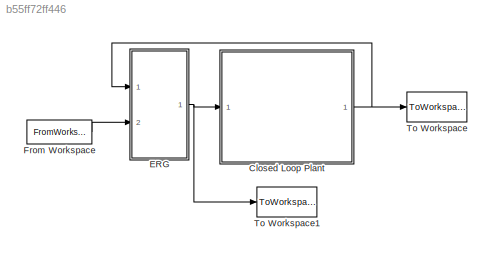
MODEL slx_b55ff72ff446
KIND model
CONFIG AbsTol = 1e-9
CONFIG EnableMultiTasking = off
CONFIG FixedStep = auto
CONFIG MaxStep = auto
CONFIG MinStep = auto
CONFIG RelTol = 1e-7
CONFIG SampleTimeConstraint = Unconstrained
CONFIG Solver = ode23s
CONFIG SolverName = ode23s
CONFIG StartTime = 0.0
CONFIG StopTime = 8
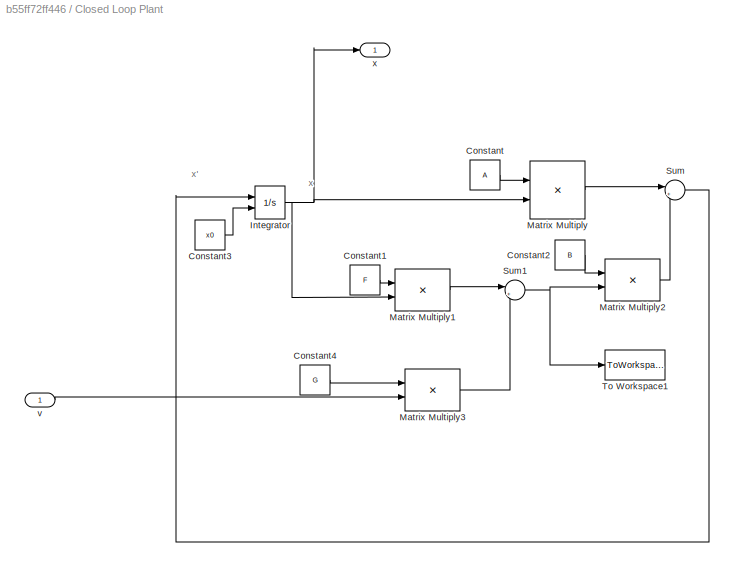
BLOCK [SubSystem] Closed Loop Plant
  Ports = [1, 1]
  RequestExecContextInheritance = off
BLOCK [Constant] Closed Loop Plant/Constant
  Value = A
BLOCK [Constant] Closed Loop Plant/Constant1
  Value = F
  VectorParams1D = off
BLOCK [Constant] Closed Loop Plant/Constant2
  Value = B
  VectorParams1D = off
BLOCK [Constant] Closed Loop Plant/Constant3
  Value = x0
  VectorParams1D = off
BLOCK [Constant] Closed Loop Plant/Constant4
  Value = G
  VectorParams1D = off
BLOCK [Integrator] Closed Loop Plant/Integrator
  InitialCondition = x0
  InitialConditionSource = external
  Ports = [2, 1]
BLOCK [Product] Closed Loop Plant/Matrix Multiply
  InputSameDT = off
  Multiplication = Matrix(*)
  OutDataTypeStr = Inherit: Inherit via internal rule
  Ports = [2, 1]
  RndMeth = Floor
  SaturateOnIntegerOverflow = off
BLOCK [Product] Closed Loop Plant/Matrix Multiply1
  InputSameDT = off
  Multiplication = Matrix(*)
  OutDataTypeStr = Inherit: Inherit via internal rule
  Ports = [2, 1]
  RndMeth = Floor
  SaturateOnIntegerOverflow = off
BLOCK [Product] Closed Loop Plant/Matrix Multiply2
  InputSameDT = off
  Multiplication = Matrix(*)
  OutDataTypeStr = Inherit: Inherit via internal rule
  Ports = [2, 1]
  RndMeth = Floor
  SaturateOnIntegerOverflow = off
BLOCK [Product] Closed Loop Plant/Matrix Multiply3
  InputSameDT = off
  Multiplication = Matrix(*)
  OutDataTypeStr = Inherit: Inherit via internal rule
  Ports = [2, 1]
  RndMeth = Floor
  SaturateOnIntegerOverflow = off
BLOCK [Sum] Closed Loop Plant/Sum
  IconShape = round
  InputSameDT = off
  Inputs = |++
  OutDataTypeStr = Inherit: Inherit via internal rule
  Ports = [2, 1]
  SaturateOnIntegerOverflow = off
BLOCK [Sum] Closed Loop Plant/Sum1
  IconShape = round
  InputSameDT = off
  Inputs = |++
  OutDataTypeStr = Inherit: Inherit via internal rule
  Ports = [2, 1]
  SaturateOnIntegerOverflow = off
BLOCK [ToWorkspace] Closed Loop Plant/To Workspace1
  FixptAsFi = on
  MaxDataPoints = inf
  Ports = [1]
  SampleTime = -1
  Save2DSignal = 2-D array (concatenate along first dimension)
  SaveFormat = Timeseries
  VariableName = uh
BLOCK [Inport] Closed Loop Plant/v
  IconDisplay = Port number
BLOCK [Outport] Closed Loop Plant/x
  IconDisplay = Port number
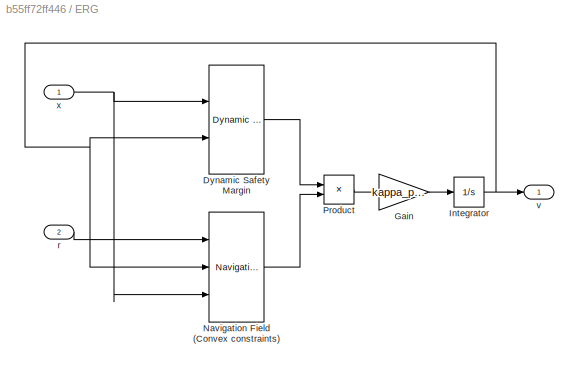
BLOCK [SubSystem] ERG
  AncestorBlock = ERG_lib/ERG
  Ports = [2, 1]
  RequestExecContextInheritance = off
BLOCK [Reference] ERG/Dynamic Safety Margin  REF=ERG_lib/Dynamic Safety Margin
  Ports = [2, 1]
  SourceBlock = ERG_lib/Dynamic Safety Margin
  SourceType = Dynamic Safety Margin
BLOCK [Gain] ERG/Gain
  Gain = kappa_param
  OutDataTypeStr = Inherit: Inherit via internal rule
  ParamDataTypeStr = Inherit: Inherit via internal rule
  SaturateOnIntegerOverflow = off
BLOCK [Integrator] ERG/Integrator
  InitialCondition = erg_param.C*x0
  Ports = [1, 1]
BLOCK [Reference] ERG/Navigation Field (Convex constraints)  REF=ERG_lib/Navigation Field
(Convex constraints)
  Ports = [3, 1]
  SourceBlock = ERG_lib/Navigation Field\n(Convex constraints)
  SourceType = Navigation Field (Convex constraints)
BLOCK [Product] ERG/Product
  InputSameDT = off
  OutDataTypeStr = Inherit: Inherit via internal rule
  Ports = [2, 1]
  RndMeth = Floor
  SaturateOnIntegerOverflow = off
BLOCK [Inport] ERG/r
  IconDisplay = Port number
  Port = 2
BLOCK [Outport] ERG/v
  IconDisplay = Port number
BLOCK [Inport] ERG/x
  IconDisplay = Port number
BLOCK [FromWorkspace] From Workspace
  SampleTime = 0
  VariableName = r
  ZeroCross = on
BLOCK [ToWorkspace] To Workspace
  FixptAsFi = on
  MaxDataPoints = inf
  Ports = [1]
  SampleTime = -1
  Save2DSignal = 3-D array (concatenate along third dimension)
  SaveFormat = Timeseries
  VariableName = xh
BLOCK [ToWorkspace] To Workspace1
  FixptAsFi = on
  MaxDataPoints = inf
  Ports = [1]
  SampleTime = -1
  Save2DSignal = 3-D array (concatenate along third dimension)
  SaveFormat = Timeseries
  VariableName = vh
ANNOTATION Closed Loop Plant: x
ANNOTATION Closed Loop Plant: x'
LINE Closed Loop Plant/Constant1:1 -> Closed Loop Plant/Matrix Multiply1:1
LINE Closed Loop Plant/Constant2:1 -> Closed Loop Plant/Matrix Multiply2:1
LINE Closed Loop Plant/Constant3:1 -> Closed Loop Plant/Integrator:2
LINE Closed Loop Plant/Constant4:1 -> Closed Loop Plant/Matrix Multiply3:1
LINE Closed Loop Plant/Constant:1 -> Closed Loop Plant/Matrix Multiply:1
NET Closed Loop Plant/Integrator:1 -> Closed Loop Plant/Matrix Multiply1:2, Closed Loop Plant/Matrix Multiply:2, Closed Loop Plant/x:1
LINE Closed Loop Plant/Matrix Multiply1:1 -> Closed Loop Plant/Sum1:1
LINE Closed Loop Plant/Matrix Multiply2:1 -> Closed Loop Plant/Sum:2
LINE Closed Loop Plant/Matrix Multiply3:1 -> Closed Loop Plant/Sum1:2
LINE Closed Loop Plant/Matrix Multiply:1 -> Closed Loop Plant/Sum:1
NET Closed Loop Plant/Sum1:1 -> Closed Loop Plant/Matrix Multiply2:2, Closed Loop Plant/To Workspace1:1
LINE Closed Loop Plant/Sum:1 -> Closed Loop Plant/Integrator:1
LINE Closed Loop Plant/v:1 -> Closed Loop Plant/Matrix Multiply3:2
NET Closed Loop Plant:1 -> ERG:1, To Workspace:1
NET ERG:1 -> Closed Loop Plant:1, To Workspace1:1
LINE From Workspace:1 -> ERG:2
note: NET lines group one-source signal fan-out (src -> all destinations, sorted); 1:1 wires keep LINE
